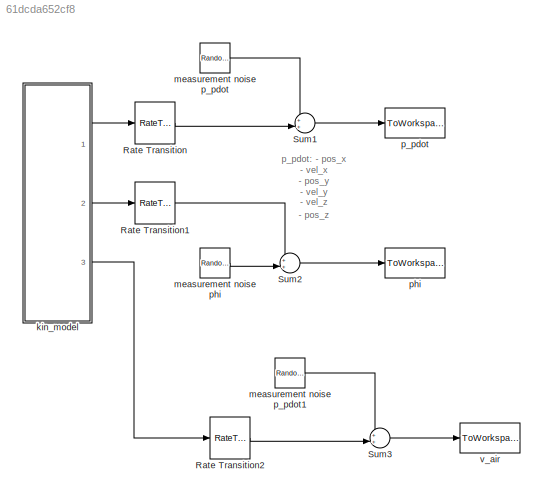
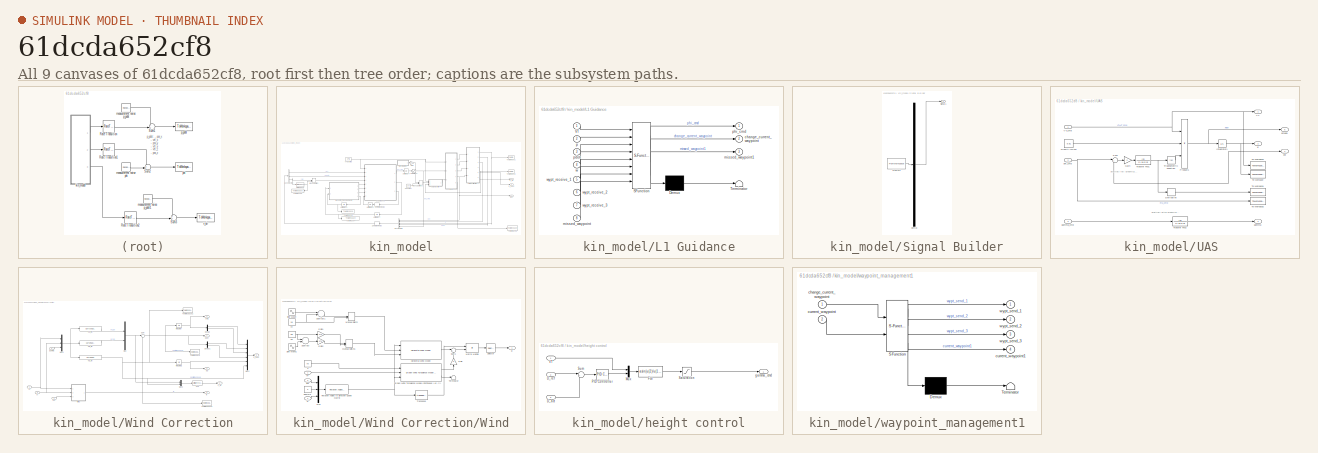
[diagram: thumbnail index - all 9 canvases of the model, root first then tree order]
MODEL slx_61dcda652cf8
KIND model
CONFIG AbsTol = auto
CONFIG FixedStep = 0.001
CONFIG MaxStep = auto
CONFIG MinStep = auto
CONFIG RelTol = 1e-3
CONFIG SampleTimeConstraint = Unconstrained
CONFIG Solver = ode45
CONFIG SolverMode = Auto
CONFIG SolverName = ode45
CONFIG StartTime = 0.0
CONFIG StopTime = 10.0
BLOCK [RateTransition] Rate Transition
  Integrity = off
  OutPortSampleTime = Ts_p_pdot
BLOCK [RateTransition] Rate Transition1
  Integrity = off
  OutPortSampleTime = Ts_phi
BLOCK [RateTransition] Rate Transition2
  Integrity = off
  OutPortSampleTime = Ts_v_air
BLOCK [Sum] Sum1
  IconShape = round
  InputSameDT = off
  Inputs = ++|
  OutDataTypeStr = Inherit: Inherit via internal rule
  Ports = [2, 1]
  SampleTime = Ts_p_pdot
  SaturateOnIntegerOverflow = off
BLOCK [Sum] Sum2
  IconShape = round
  InputSameDT = off
  Inputs = ++|
  OutDataTypeStr = Inherit: Inherit via internal rule
  Ports = [2, 1]
  SampleTime = Ts_phi
  SaturateOnIntegerOverflow = off
BLOCK [Sum] Sum3
  IconShape = round
  InputSameDT = off
  Inputs = ++|
  OutDataTypeStr = Inherit: Inherit via internal rule
  Ports = [2, 1]
  SampleTime = Ts_v_air
  SaturateOnIntegerOverflow = off
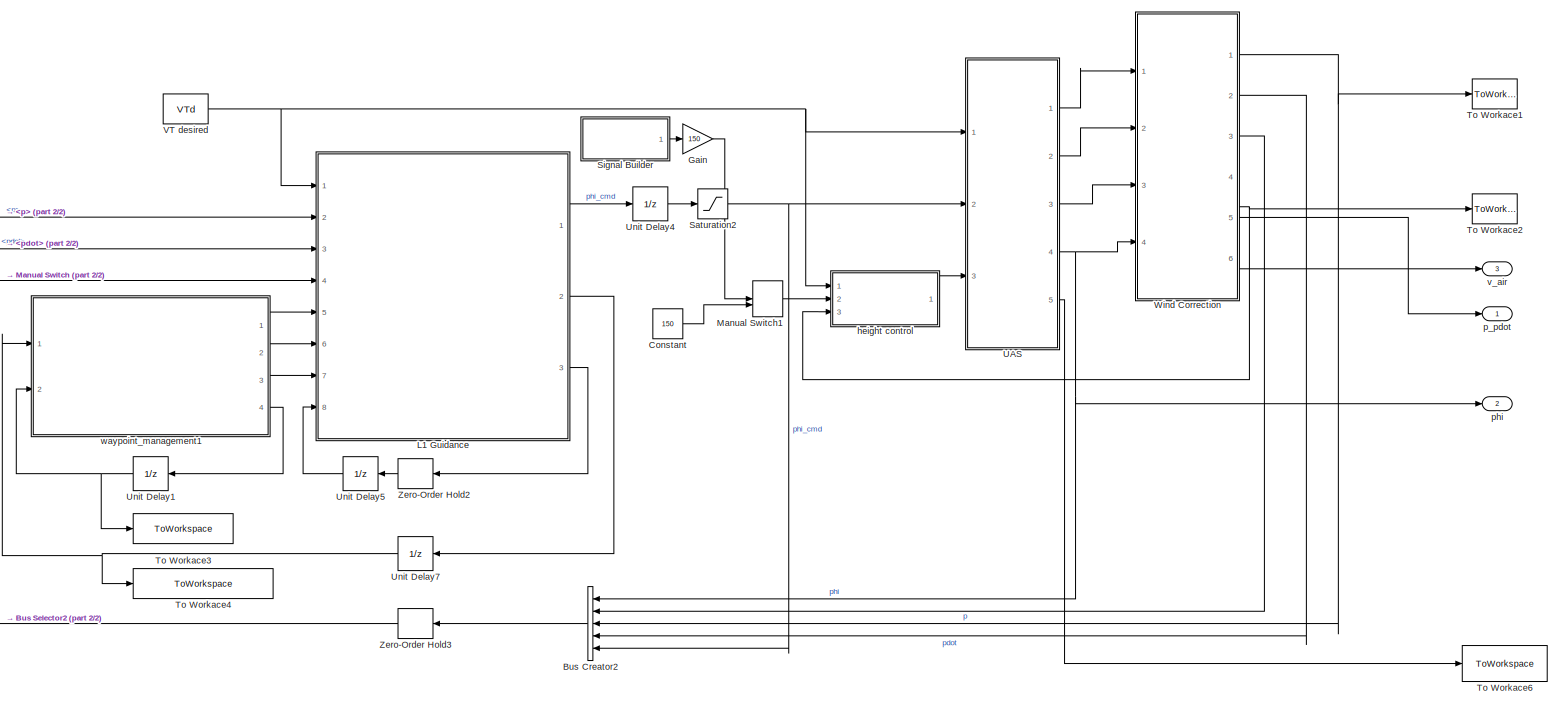
[diagram: kin_model - part 1/2, most of the canvas]
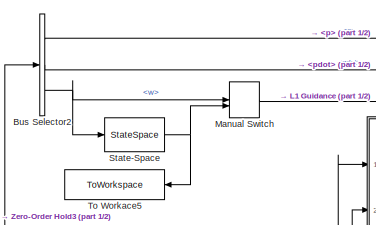
[diagram: kin_model - part 2/2, middle left region]
BLOCK [SubSystem] kin_model
  Ports = [0, 3]
  RequestExecContextInheritance = off
BLOCK [BusCreator] kin_model/Bus Creator2
  DisplayOption = bar
  Inputs = 5
  Ports = [5, 1]
BLOCK [BusSelector] kin_model/Bus Selector2
  OutputSignals = p,pdot,w
  Ports = [1, 3]
BLOCK [Constant] kin_model/Constant
  SampleTime = Ts
  Value = 150
BLOCK [Gain] kin_model/Gain
  Gain = 150
  OutDataTypeStr = Inherit: Inherit via internal rule
  ParamDataTypeStr = Inherit: Inherit via internal rule
  SaturateOnIntegerOverflow = off
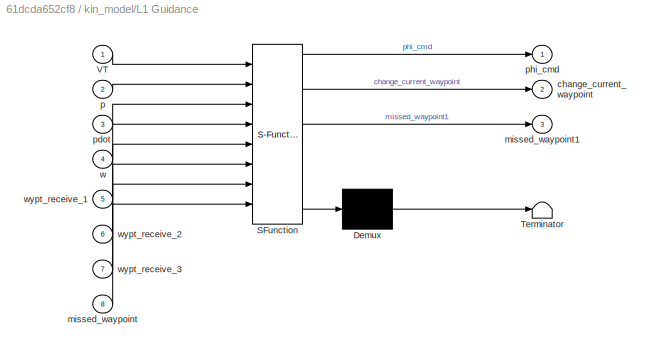
BLOCK [SubSystem] kin_model/L1 Guidance
  ErrorFcn = Stateflow.Translate.translate
  PermitHierarchicalResolution = ExplicitOnly
  Ports = [8, 3]
  RequestExecContextInheritance = off
  SFBlockType = MATLAB Function
  SystemSampleTime = Tctrl
  TreatAsAtomicUnit = on
BLOCK [Demux] kin_model/L1 Guidance/ Demux 
  Outputs = 1
  Ports = [1, 1]
BLOCK [S-Function] kin_model/L1 Guidance/ SFunction 
  EnableBusSupport = on
  FunctionName = sf_sfun
  PortCounts = [8 4]
  Ports = [8, 4]
  Tag = Stateflow S-Function aircraft_model 4
BLOCK [Terminator] kin_model/L1 Guidance/ Terminator 
BLOCK [Inport] kin_model/L1 Guidance/VT
  IconDisplay = Port number
BLOCK [Outport] kin_model/L1 Guidance/change_current_waypoint
  IconDisplay = Port number
  Port = 2
BLOCK [Inport] kin_model/L1 Guidance/missed_waypoint
  IconDisplay = Port number
  Port = 8
BLOCK [Outport] kin_model/L1 Guidance/missed_waypoint1
  IconDisplay = Port number
  Port = 3
BLOCK [Inport] kin_model/L1 Guidance/p
  IconDisplay = Port number
  Port = 2
BLOCK [Inport] kin_model/L1 Guidance/pdot
  IconDisplay = Port number
  Port = 3
BLOCK [Outport] kin_model/L1 Guidance/phi_cmd
  IconDisplay = Port number
BLOCK [Inport] kin_model/L1 Guidance/w
  IconDisplay = Port number
  Port = 4
BLOCK [Inport] kin_model/L1 Guidance/wypt_receive_1
  IconDisplay = Port number
  Port = 5
BLOCK [Inport] kin_model/L1 Guidance/wypt_receive_2
  IconDisplay = Port number
  Port = 6
BLOCK [Inport] kin_model/L1 Guidance/wypt_receive_3
  IconDisplay = Port number
  Port = 7
BLOCK [ManualSwitch] kin_model/Manual Switch
BLOCK [ManualSwitch] kin_model/Manual Switch1
BLOCK [Saturate] kin_model/Saturation2
  InputPortMap = u0
  LowerLimit = -phi_max
  Ports = [1, 1]
  UpperLimit = phi_max
BLOCK [SubSystem] kin_model/Signal Builder
  ClipboardFcn = sigbuilder_block('clipboard');
  CloseFcn = sigbuilder_block('close');
  ContinueFcn = sigbuilder_block('continue');
  CopyFcn = sigbuilder_block('copy');
  DeleteFcn = sigbuilder_block('delete');
  LoadFcn = sigbuilder_block('load',[0 51 1440 753 ]);
  MaskHideContents = on
  ModelCloseFcn = sigbuilder_block('modelClose');
  NameChangeFcn = sigbuilder_block('namechange');
  OpenFcn = sigbuilder_block('open',[437.6 199.2 550.4 400 ]);
  PauseFcn = sigbuilder_block('pause');
  Ports = [0, 1]
  PreSaveFcn = sigbuilder_block('preSave');
  RequestExecContextInheritance = off
  StartFcn = sigbuilder_block('start');
  StopFcn = sigbuilder_block('stop');
  Tag = STV Subsys
BLOCK [Demux] kin_model/Signal Builder/Demux
  Outputs = 1
  Ports = [1, 1]
  Tag = STV Demux
BLOCK [FromWorkspace] kin_model/Signal Builder/FromWs
  SampleTime = 0
  Tag = STV FromWs
  VariableName = tuvar
  ZeroCross = on
BLOCK [Outport] kin_model/Signal Builder/Signal 1
  IconDisplay = Port number
  Tag = STV Outport
BLOCK [StateSpace] kin_model/State-Space
  A = -1*eye(2)
  B = 1*eye(2)
  C = eye(2)
  D = zeros(2)
  Ports = [1, 1]
  X0 = double([Vw*cos(xiw);Vw*sin(xiw)])
BLOCK [ToWorkspace] kin_model/To Workace1
  MaxDataPoints = inf
  Ports = [1]
  SampleTime = Ts
  SaveFormat = Structure With Time
  VariableName = pNE
BLOCK [ToWorkspace] kin_model/To Workace2
  MaxDataPoints = inf
  Ports = [1]
  SampleTime = Ts
  SaveFormat = Structure With Time
  VariableName = pD
BLOCK [ToWorkspace] kin_model/To Workace3
  MaxDataPoints = inf
  Ports = [1]
  SampleTime = Ts
  SaveFormat = Structure With Time
  VariableName = current_waypoint
BLOCK [ToWorkspace] kin_model/To Workace4
  MaxDataPoints = inf
  Ports = [1]
  SampleTime = Ts
  SaveFormat = Structure With Time
  VariableName = change_current_waypoint
BLOCK [ToWorkspace] kin_model/To Workace5
  MaxDataPoints = inf
  Ports = [1]
  SampleTime = Ts
  SaveFormat = Structure With Time
  VariableName = w_fil
BLOCK [ToWorkspace] kin_model/To Workace6
  MaxDataPoints = inf
  Ports = [1]
  SampleTime = Ts
  SaveFormat = Structure With Time
  VariableName = omega_true
BLOCK [SubSystem] kin_model/UAS 
  Ports = [3, 5]
  RequestExecContextInheritance = off
BLOCK [Derivative] kin_model/UAS /Derivative
BLOCK [Gain] kin_model/UAS /Gain
  Gain = 2
  OutDataTypeStr = Inherit: Inherit via internal rule
  ParamDataTypeStr = Inherit: Inherit via internal rule
  SaturateOnIntegerOverflow = off
BLOCK [Constant] kin_model/UAS /Gravity [m//s2]
  Value = 9.81
BLOCK [Integrator] kin_model/UAS /Integrator1
  InitialCondition = xi0
  Ports = [1, 1]
BLOCK [Product] kin_model/UAS /Product1
  InputSameDT = off
  Inputs = /**
  OutDataTypeStr = Inherit: Inherit via internal rule
  Ports = [3, 1]
  RndMeth = Floor
  SaturateOnIntegerOverflow = off
BLOCK [Sum] kin_model/UAS /Sum
  IconShape = round
  InputSameDT = off
  Inputs = |+-
  OutDataTypeStr = Inherit: Inherit via internal rule
  Ports = [2, 1]
  SaturateOnIntegerOverflow = off
BLOCK [ToWorkspace] kin_model/UAS /To Workace
  MaxDataPoints = inf
  Ports = [1]
  SampleTime = Ts
  SaveFormat = Structure With Time
  VariableName = xi
BLOCK [ToWorkspace] kin_model/UAS /To Workace1
  MaxDataPoints = inf
  Ports = [1]
  SampleTime = Ts
  SaveFormat = Structure With Time
  VariableName = phi_dot
BLOCK [ToWorkspace] kin_model/UAS /To Workace2
  MaxDataPoints = inf
  Ports = [1]
  SampleTime = Ts
  SaveFormat = Structure With Time
  VariableName = phi_cmd
BLOCK [ToWorkspace] kin_model/UAS /To Workace4
  MaxDataPoints = inf
  Ports = [1]
  SampleTime = Ts
  SaveFormat = Structure With Time
  VariableName = VT
BLOCK [TransferFcn] kin_model/UAS /Transfer Fcn1
  Denominator = [1 10.5 0]
  Numerator = [2]
BLOCK [TransferFcn] kin_model/UAS /Transfer Fcn2
  Denominator = [1 10.5 0]
  Numerator = [2]
BLOCK [Trigonometry] kin_model/UAS /Trigonometric Function
  Operator = tan
  Ports = [1, 1]
BLOCK [Outport] kin_model/UAS /VT
  IconDisplay = Port number
BLOCK [Inport] kin_model/UAS /VT_cmd
  IconDisplay = Port number
BLOCK [Outport] kin_model/UAS /gamma
  IconDisplay = Port number
  Port = 3
BLOCK [Inport] kin_model/UAS /gamma_cmd
  IconDisplay = Port number
  Port = 3
BLOCK [Outport] kin_model/UAS /omega
  IconDisplay = Port number
  Port = 5
BLOCK [Outport] kin_model/UAS /phi
  IconDisplay = Port number
  Port = 4
BLOCK [Inport] kin_model/UAS /phi_cmd
  IconDisplay = Port number
  Port = 2
BLOCK [Outport] kin_model/UAS /xi
  IconDisplay = Port number
  Port = 2
BLOCK [UnitDelay] kin_model/Unit Delay1
  InitialCondition = 1
  InputProcessing = Elements as channels (sample based)
  SampleTime = 0.001
BLOCK [UnitDelay] kin_model/Unit Delay4
  InputProcessing = Elements as channels (sample based)
  SampleTime = 0.001
BLOCK [UnitDelay] kin_model/Unit Delay5
  InputProcessing = Elements as channels (sample based)
  SampleTime = 0.001
BLOCK [UnitDelay] kin_model/Unit Delay7
  InputProcessing = Elements as channels (sample based)
  SampleTime = 0.001
BLOCK [Constant] kin_model/VT desired
  Value = VTd
BLOCK [SubSystem] kin_model/Wind Correction
  Ports = [4, 6]
  RequestExecContextInheritance = off
BLOCK [Demux] kin_model/Wind Correction/Demux
  DisplayOption = bar
  Outputs = 2
  Ports = [1, 2]
BLOCK [Demux] kin_model/Wind Correction/Demux1
  DisplayOption = bar
  Outputs = 2
  Ports = [1, 2]
BLOCK [Fcn] kin_model/Wind Correction/Fcn
  Expr = sqrt(u(1)^2+u(2)^2+u(3)^2)
BLOCK [Integrator] kin_model/Wind Correction/Integrator
  InitialCondition = p0
  Ports = [1, 1]
BLOCK [Integrator] kin_model/Wind Correction/Integrator1
  InitialCondition = h0
  Ports = [1, 1]
BLOCK [Mux] kin_model/Wind Correction/Mux
  DisplayOption = bar
  Inputs = 2
  Ports = [2, 1]
BLOCK [Mux] kin_model/Wind Correction/Mux1
  DisplayOption = bar
  Inputs = 3
  Ports = [3, 1]
BLOCK [Mux] kin_model/Wind Correction/Mux2
  DisplayOption = bar
  Inputs = 6
  Ports = [6, 1]
BLOCK [Mux] kin_model/Wind Correction/Mux3
  DisplayOption = bar
  Inputs = 2
  Ports = [2, 1]
BLOCK [Sum] kin_model/Wind Correction/Sum
  IconShape = round
  InputSameDT = off
  Inputs = |++
  OutDataTypeStr = Inherit: Inherit via internal rule
  Ports = [2, 1]
  SaturateOnIntegerOverflow = off
BLOCK [ToWorkspace] kin_model/Wind Correction/To Workspace
  FixptAsFi = on
  MaxDataPoints = inf
  Ports = [1]
  SampleTime = Ts
  Save2DSignal = 3-D array (concatenate along third dimension)
  SaveFormat = Structure With Time
  VariableName = pdot
BLOCK [ToWorkspace] kin_model/Wind Correction/To Workspace1
  FixptAsFi = on
  MaxDataPoints = inf
  Ports = [1]
  SampleTime = Ts
  Save2DSignal = 3-D array (concatenate along third dimension)
  SaveFormat = Structure With Time
  VariableName = w
BLOCK [ToWorkspace] kin_model/Wind Correction/To Workspace2
  FixptAsFi = on
  MaxDataPoints = inf
  Ports = [1]
  SampleTime = Ts
  Save2DSignal = 3-D array (concatenate along third dimension)
  SaveFormat = Structure With Time
  VariableName = pdotD
BLOCK [Inport] kin_model/Wind Correction/VT
  IconDisplay = Port number
BLOCK [SubSystem] kin_model/Wind Correction/Wind
  Ports = [3, 1]
  RequestExecContextInheritance = off
BLOCK [Reference] kin_model/Wind Correction/Wind/Dryden Wind Turbulence Model (Continuous (+q -r))  REF=aerolibwind2/Dryden Wind Turbulence Model 
(Continuous (+q -r))
  L_high = 533.4
  Ports = [3, 2]
  Seed = [23341 23342 23343 23344]
  SourceBlock = aerolibwind2/Dryden Wind Turbulence Model \n(Continuous (+q -r))
  SourceType = Wind Turbulence Model
  T_on = on
  TurbProb = 10^-2 - Light
  W20 = Vw
  Wdeg = xiw
  Wingspan = b_uas
  model = Continuous Dryden (+q -r)
  spec = MIL-F-8785C
  ts = 0.01
  units = Metric (MKS)
BLOCK [Gain] kin_model/Wind Correction/Wind/Gain
  Gain = 0
  OutDataTypeStr = Inherit: Inherit via internal rule
  ParamDataTypeStr = Inherit: Inherit via internal rule
  SaturateOnIntegerOverflow = off
BLOCK [Gain] kin_model/Wind Correction/Wind/Gain1
  Gain = 57.3
  OutDataTypeStr = Inherit: Inherit via internal rule
  ParamDataTypeStr = Inherit: Inherit via internal rule
  SaturateOnIntegerOverflow = off
BLOCK [Gain] kin_model/Wind Correction/Wind/Gain2
  Gain = 57.3
  OutDataTypeStr = Inherit: Inherit via internal rule
  ParamDataTypeStr = Inherit: Inherit via internal rule
  SaturateOnIntegerOverflow = off
BLOCK [Reference] kin_model/Wind Correction/Wind/Horizontal Wind Model  REF=aerolibwind2/Horizontal Wind Model
  Ports = [3, 1]
  SourceBlock = aerolibwind2/Horizontal Wind Model
  SourceType = Horizontal Wind Model
  Vw_source = External
  Vwind = Vw
  W_source = External
  Wdeg = xiw
  units = Metric (MKS)
BLOCK [ManualSwitch] kin_model/Wind Correction/Wind/Manual Switch
  CurrentSetting = 0
BLOCK [ManualSwitch] kin_model/Wind Correction/Wind/Manual Switch1
  CurrentSetting = 0
BLOCK [Product] kin_model/Wind Correction/Wind/Matrix Multiply
  InputSameDT = off
  Multiplication = Matrix(*)
  OutDataTypeStr = Inherit: Inherit via internal rule
  Ports = [2, 1]
  RndMeth = Floor
  SaturateOnIntegerOverflow = off
BLOCK [Mux] kin_model/Wind Correction/Wind/Mux
  DisplayOption = bar
  Inputs = 3
  Ports = [3, 1]
BLOCK [Reference] kin_model/Wind Correction/Wind/Rotation Angles to Direction Cosine Matrix  REF=aerolibtransform2/Rotation Angles to
Direction Cosine Matrix
  AttributesFormatString = Rotation Order: %<rotationOrder>
  Ports = [1, 1]
  SourceBlock = aerolibtransform2/Rotation Angles to\nDirection Cosine Matrix
  SourceType = Ang2DCM
  rotationOrder = ZYX
BLOCK [Selector] kin_model/Wind Correction/Wind/Selector
  Indices = [1 2]
  InputPortWidth = 3
  Ports = [1, 1]
BLOCK [Sin] kin_model/Wind Correction/Wind/Sine Wave
  Amplitude = 3
  Bias = -1
  Frequency = 0.05
  Ports = [0, 1]
  SampleTime = 0
BLOCK [Sin] kin_model/Wind Correction/Wind/Sine Wave1
  Amplitude = 30*pi/180
  Frequency = 0.1
  Phase = 35*pi/180
  Ports = [0, 1]
  SampleTime = 0
BLOCK [Sum] kin_model/Wind Correction/Wind/Subtract
  InputSameDT = off
  OutDataTypeStr = Inherit: Inherit via internal rule
  Ports = [2, 1]
  SaturateOnIntegerOverflow = off
BLOCK [Sum] kin_model/Wind Correction/Wind/Subtract1
  InputSameDT = off
  OutDataTypeStr = Inherit: Inherit via internal rule
  Ports = [2, 1]
  SaturateOnIntegerOverflow = off
BLOCK [Sum] kin_model/Wind Correction/Wind/Sum1
  IconShape = round
  InputSameDT = off
  Inputs = |++
  OutDataTypeStr = Inherit: Inherit via internal rule
  Ports = [2, 1]
  SaturateOnIntegerOverflow = off
BLOCK [Terminator] kin_model/Wind Correction/Wind/Terminator
BLOCK [Math] kin_model/Wind Correction/Wind/Transpose
  Operator = transpose
  Ports = [1, 1]
BLOCK [Inport] kin_model/Wind Correction/Wind/VT
  IconDisplay = Port number
BLOCK [Constant] kin_model/Wind Correction/Wind/gamma
  Value = 0
BLOCK [Constant] kin_model/Wind Correction/Wind/h
  Value = h0
BLOCK [Constant] kin_model/Wind Correction/Wind/h4
  Value = Vw
BLOCK [Constant] kin_model/Wind Correction/Wind/h5
  Value = xiw
BLOCK [Inport] kin_model/Wind Correction/Wind/phi
  IconDisplay = Port number
  Port = 3
BLOCK [Outport] kin_model/Wind Correction/Wind/w
  IconDisplay = Port number
BLOCK [Inport] kin_model/Wind Correction/Wind/xi
  IconDisplay = Port number
  Port = 2
BLOCK [Inport] kin_model/Wind Correction/gamma
  IconDisplay = Port number
  Port = 3
BLOCK [Outport] kin_model/Wind Correction/pD
  IconDisplay = Port number
  Port = 4
BLOCK [Outport] kin_model/Wind Correction/pNE
  IconDisplay = Port number
  PortDimensions = 2
BLOCK [Outport] kin_model/Wind Correction/p_pdot
  IconDisplay = Port number
  Port = 5
BLOCK [Outport] kin_model/Wind Correction/pdot
  IconDisplay = Port number
  Port = 2
  PortDimensions = 2
BLOCK [Inport] kin_model/Wind Correction/phi
  IconDisplay = Port number
  Port = 4
BLOCK [Fcn] kin_model/Wind Correction/vD_rel
  Expr = u(1)*sin(u(3))
  SampleTime = Ts
BLOCK [Fcn] kin_model/Wind Correction/vE_rel
  Expr = u(1)*sin(u(2))*cos(u(3))
  SampleTime = Ts
BLOCK [Fcn] kin_model/Wind Correction/vN_rel
  Expr = u(1)*cos(u(2))*cos(u(3))
  SampleTime = Ts
BLOCK [Outport] kin_model/Wind Correction/v_air
  IconDisplay = Port number
  Port = 6
BLOCK [Outport] kin_model/Wind Correction/w
  IconDisplay = Port number
  Port = 3
  PortDimensions = 2
BLOCK [Inport] kin_model/Wind Correction/xi
  IconDisplay = Port number
  Port = 2
BLOCK [ZeroOrderHold] kin_model/Zero-Order Hold2
  SampleTime = 0.001
BLOCK [ZeroOrderHold] kin_model/Zero-Order Hold3
  SampleTime = Tctrl
BLOCK [SubSystem] kin_model/height control
  Ports = [3, 1]
  RequestExecContextInheritance = off
BLOCK [Inport] kin_model/height control/D_act
  IconDisplay = Port number
  Port = 3
BLOCK [Inport] kin_model/height control/D_ref
  IconDisplay = Port number
  Port = 2
BLOCK [Fcn] kin_model/height control/Fcn
  Expr = asin(u(2)/u(1))
  SampleTime = Ts
BLOCK [Mux] kin_model/height control/Mux
  DisplayOption = bar
  Inputs = 2
  Ports = [2, 1]
BLOCK [Reference] kin_model/height control/PID Controller  REF=simulink/Continuous/PID Controller
  AntiWindupMode = none
  Controller = PD
  D = 10
  DOutDataTypeStr = Inherit: Inherit via internal rule
  DOutMax = []
  DOutMin = []
  DParamDataTypeStr = Inherit: Inherit via internal rule
  DParamMax = []
  DParamMin = []
  DifferentiatorICPrevScaledInput = 0
  DifferentiatorOutDataTypeStr = Inherit: Inherit via internal rule
  DifferentiatorOutMax = []
  DifferentiatorOutMin = []
  ExternalReset = none
  FilterContinuousStateAttributes = ''
  FilterMethod = Forward Euler
  FilterOutDataTypeStr = Inherit: Inherit via internal rule
  FilterOutMax = []
  FilterOutMin = []
  FilterRTWStateStorageClass = Auto
  FilterStateMustResolveToSignalObject = off
  Form = Parallel
  I = 1
  IOutDataTypeStr = Inherit: Inherit via internal rule
  IOutMax = []
  IOutMin = []
  IParamDataTypeStr = Inherit: Inherit via internal rule
  IParamMax = []
  IParamMin = []
  IgnoreLimit = off
  InitialConditionForFilter = 0
  InitialConditionForIntegrator = 0
  InitialConditionSource = internal
  IntegratorContinuousStateAttributes = ''
  IntegratorMethod = Forward Euler
  IntegratorOutDataTypeStr = Inherit: Inherit via internal rule
  IntegratorOutMax = []
  IntegratorOutMin = []
  IntegratorRTWStateStorageClass = Auto
  IntegratorStateMustResolveToSignalObject = off
  Kb = 1
  KbOutDataTypeStr = Inherit: Inherit via internal rule
  KbOutMax = []
  KbOutMin = []
  KbParamDataTypeStr = Inherit: Inherit via internal rule
  KbParamMax = []
  KbParamMin = []
  Kt = 1
  KtOutDataTypeStr = Inherit: Inherit via internal rule
  KtOutMax = []
  KtOutMin = []
  KtParamDataTypeStr = Inherit: Inherit via internal rule
  KtParamMax = []
  KtParamMin = []
  LimitOutput = off
  LinearizeAsGain = on
  LockScale = off
  LowerSaturationLimit = -inf
  N = 100
  NOutDataTypeStr = Inherit: Inherit via internal rule
  NOutMax = []
  NOutMin = []
  NParamDataTypeStr = Inherit: Inherit via internal rule
  NParamMax = []
  NParamMin = []
  P = 5
  POutDataTypeStr = Inherit: Inherit via internal rule
  POutMax = []
  POutMin = []
  PParamDataTypeStr = Inherit: Inherit via internal rule
  PParamMax = []
  PParamMin = []
  Ports = [1, 1]
  RndMeth = Floor
  SampleTime = -1
  SaturateOnIntegerOverflow = off
  SaturationOutDataTypeStr = Inherit: Same as input
  SaturationOutMax = []
  SaturationOutMin = []
  SourceBlock = simulink/Continuous/PID Controller
  SourceType = PID 1dof
  SumAccumDataTypeStr = Inherit: Inherit via internal rule
  SumDAccumDataTypeStr = Inherit: Inherit via internal rule
  SumDOutDataTypeStr = Inherit: Inherit via internal rule
  SumDOutMax = []
  SumDOutMin = []
  SumI1AccumDataTypeStr = Inherit: Inherit via internal rule
  SumI1OutDataTypeStr = Inherit: Inherit via internal rule
  SumI1OutMax = []
  SumI1OutMin = []
  SumI2AccumDataTypeStr = Inherit: Inherit via internal rule
  SumI2OutDataTypeStr = Inherit: Inherit via internal rule
  SumI2OutMax = []
  SumI2OutMin = []
  SumI3AccumDataTypeStr = Inherit: Inherit via internal rule
  SumI3OutDataTypeStr = Inherit: Inherit via internal rule
  SumI3OutMax = []
  SumI3OutMin = []
  SumOutDataTypeStr = Inherit: Inherit via internal rule
  SumOutMax = []
  SumOutMin = []
  TimeDomain = Continuous-time
  TrackingMode = off
  UpperSaturationLimit = inf
  UseFilter = on
  ZeroCross = on
BLOCK [Saturate] kin_model/height control/Saturation
  InputPortMap = u0
  LowerLimit = -phi_max
  Ports = [1, 1]
  UpperLimit = phi_max
BLOCK [Sum] kin_model/height control/Sum
  IconShape = round
  InputSameDT = off
  Inputs = |+-
  OutDataTypeStr = Inherit: Inherit via internal rule
  Ports = [2, 1]
  SaturateOnIntegerOverflow = off
BLOCK [Inport] kin_model/height control/VT
  IconDisplay = Port number
BLOCK [Outport] kin_model/height control/gamma_cmd
  IconDisplay = Port number
BLOCK [Outport] kin_model/p_pdot
  IconDisplay = Port number
BLOCK [Outport] kin_model/phi
  IconDisplay = Port number
  Port = 2
BLOCK [Outport] kin_model/v_air
  IconDisplay = Port number
  Port = 3
BLOCK [SubSystem] kin_model/waypoint_management1
  ErrorFcn = Stateflow.Translate.translate
  PermitHierarchicalResolution = ExplicitOnly
  Ports = [2, 4]
  RequestExecContextInheritance = off
  SFBlockType = MATLAB Function
  SystemSampleTime = Tctrl
  TreatAsAtomicUnit = on
BLOCK [Demux] kin_model/waypoint_management1/ Demux 
  Outputs = 1
  Ports = [1, 1]
BLOCK [S-Function] kin_model/waypoint_management1/ SFunction 
  EnableBusSupport = on
  FunctionName = sf_sfun
  Parameters = wypts0
  PortCounts = [2 5]
  Ports = [2, 5]
  Tag = Stateflow S-Function aircraft_model 6
BLOCK [Terminator] kin_model/waypoint_management1/ Terminator 
BLOCK [Inport] kin_model/waypoint_management1/change_current_waypoint
  IconDisplay = Port number
BLOCK [Inport] kin_model/waypoint_management1/current_waypoint
  IconDisplay = Port number
  Port = 2
BLOCK [Outport] kin_model/waypoint_management1/current_waypoint1
  IconDisplay = Port number
  Port = 4
BLOCK [Outport] kin_model/waypoint_management1/wypt_send_1
  IconDisplay = Port number
BLOCK [Outport] kin_model/waypoint_management1/wypt_send_2
  IconDisplay = Port number
  Port = 2
BLOCK [Outport] kin_model/waypoint_management1/wypt_send_3
  IconDisplay = Port number
  Port = 3
BLOCK [RandomNumber] measurement noise p_pdot
  SampleTime = Ts_p_pdot
  Seed = seed_p_pdot
  Variance = [m_p;m_v;m_p;m_v;m_p;m_v]
BLOCK [RandomNumber] measurement noise p_pdot1
  SampleTime = Ts_v_air
  Seed = seed_v_air
  Variance = [m_v_air]
BLOCK [RandomNumber] measurement noise phi
  SampleTime = Ts_phi
  Seed = seed_phi
  Variance = m_phi
BLOCK [ToWorkspace] p_pdot
  FixptAsFi = on
  MaxDataPoints = inf
  Ports = [1]
  SampleTime = -1
  Save2DSignal = 3-D array (concatenate along third dimension)
  SaveFormat = Structure With Time
  VariableName = p_pdot
BLOCK [ToWorkspace] phi
  FixptAsFi = on
  MaxDataPoints = inf
  Ports = [1]
  SampleTime = -1
  Save2DSignal = 3-D array (concatenate along third dimension)
  SaveFormat = Structure With Time
  VariableName = phi
BLOCK [ToWorkspace] v_air
  FixptAsFi = on
  MaxDataPoints = inf
  Ports = [1]
  SampleTime = -1
  Save2DSignal = 3-D array (concatenate along third dimension)
  SaveFormat = Structure With Time
  VariableName = v_air
ANNOTATION (root): p_pdot: - pos_x - vel_x - pos_y - vel_y - pos_z - vel_z
ANNOTATION kin_model/UAS : arbitrary pitch dynamics...
ANNOTATION kin_model/UAS : arbitrary roll dynamics...
LINE Rate Transition1:1 -> Sum2:1
LINE Rate Transition2:1 -> Sum3:2
LINE Rate Transition:1 -> Sum1:2
LINE Sum1:1 -> p_pdot:1
LINE Sum2:1 -> phi:1
LINE Sum3:1 -> v_air:1
LINE kin_model/Bus Creator2:1 -> kin_model/Zero-Order Hold3:1
LINE kin_model/Bus Selector2:1 -> kin_model/L1 Guidance:2
LINE kin_model/Bus Selector2:2 -> kin_model/L1 Guidance:3
NET kin_model/Bus Selector2:3 -> kin_model/Manual Switch:1, kin_model/State-Space:1
LINE kin_model/Constant:1 -> kin_model/Manual Switch1:2
LINE kin_model/Gain:1 -> kin_model/Manual Switch1:1
LINE kin_model/L1 Guidance:1 -> kin_model/Unit Delay4:1
LINE kin_model/L1 Guidance:2 -> kin_model/Unit Delay7:1
LINE kin_model/L1 Guidance:3 -> kin_model/Zero-Order Hold2:1
LINE kin_model/Manual Switch1:1 -> kin_model/height control:2
LINE kin_model/Manual Switch:1 -> kin_model/L1 Guidance:4
NET kin_model/Saturation2:1 -> kin_model/Bus Creator2:5, kin_model/UAS :2
LINE kin_model/Signal Builder:1 -> kin_model/Gain:1
NET kin_model/State-Space:1 -> kin_model/Manual Switch:2, kin_model/To Workace5:1
LINE kin_model/UAS /Derivative:1 -> kin_model/UAS /To Workace1:1
LINE kin_model/UAS /Gain:1 -> kin_model/UAS /Transfer Fcn1:1
LINE kin_model/UAS /Gravity [m//s2]:1 -> kin_model/UAS /Product1:2
NET kin_model/UAS /Integrator1:1 -> kin_model/UAS /To Workace:1, kin_model/UAS /xi:1
NET kin_model/UAS /Product1:1 -> kin_model/UAS /Integrator1:1, kin_model/UAS /omega:1
LINE kin_model/UAS /Sum:1 -> kin_model/UAS /Gain:1
NET kin_model/UAS /Transfer Fcn1:1 -> kin_model/UAS /Derivative:1, kin_model/UAS /Sum:2, kin_model/UAS /Trigonometric Function:1, kin_model/UAS /phi:1
LINE kin_model/UAS /Transfer Fcn2:1 -> kin_model/UAS /gamma:1
LINE kin_model/UAS /Trigonometric Function:1 -> kin_model/UAS /Product1:3
NET kin_model/UAS /VT_cmd:1 -> kin_model/UAS /Product1:1, kin_model/UAS /To Workace4:1, kin_model/UAS /VT:1
LINE kin_model/UAS /gamma_cmd:1 -> kin_model/UAS /Transfer Fcn2:1
NET kin_model/UAS /phi_cmd:1 -> kin_model/UAS /Sum:1, kin_model/UAS /To Workace2:1
LINE kin_model/UAS :1 -> kin_model/Wind Correction:1
LINE kin_model/UAS :2 -> kin_model/Wind Correction:2
LINE kin_model/UAS :3 -> kin_model/Wind Correction:3
NET kin_model/UAS :4 -> kin_model/Bus Creator2:1, kin_model/Wind Correction:4, kin_model/phi:1
LINE kin_model/UAS :5 -> kin_model/To Workace6:1
NET kin_model/Unit Delay1:1 -> kin_model/To Workace3:1, kin_model/waypoint_management1:2
LINE kin_model/Unit Delay4:1 -> kin_model/Saturation2:1
LINE kin_model/Unit Delay5:1 -> kin_model/L1 Guidance:8
NET kin_model/Unit Delay7:1 -> kin_model/To Workace4:1, kin_model/waypoint_management1:1
NET kin_model/VT desired:1 -> kin_model/L1 Guidance:1, kin_model/UAS :1, kin_model/height control:1
LINE kin_model/Wind Correction/Demux1:1 -> kin_model/Wind Correction/Mux2:2
LINE kin_model/Wind Correction/Demux1:2 -> kin_model/Wind Correction/Mux2:4
LINE kin_model/Wind Correction/Demux:1 -> kin_model/Wind Correction/Mux2:1
LINE kin_model/Wind Correction/Demux:2 -> kin_model/Wind Correction/Mux2:3
LINE kin_model/Wind Correction/Fcn:1 -> kin_model/Wind Correction/v_air:1
NET kin_model/Wind Correction/Integrator1:1 -> kin_model/Wind Correction/Mux2:5, kin_model/Wind Correction/pD:1
NET kin_model/Wind Correction/Integrator:1 -> kin_model/Wind Correction/Demux:1, kin_model/Wind Correction/pNE:1
NET kin_model/Wind Correction/Mux1:1 -> kin_model/Wind Correction/vD_rel:1, kin_model/Wind Correction/vE_rel:1, kin_model/Wind Correction/vN_rel:1
LINE kin_model/Wind Correction/Mux2:1 -> kin_model/Wind Correction/p_pdot:1
LINE kin_model/Wind Correction/Mux3:1 -> kin_model/Wind Correction/Fcn:1
NET kin_model/Wind Correction/Mux:1 -> kin_model/Wind Correction/Mux3:1, kin_model/Wind Correction/Sum:1
NET kin_model/Wind Correction/Sum:1 -> kin_model/Wind Correction/Demux1:1, kin_model/Wind Correction/Integrator:1, kin_model/Wind Correction/To Workspace:1, kin_model/Wind Correction/pdot:1
NET kin_model/Wind Correction/VT:1 -> kin_model/Wind Correction/Mux1:1, kin_model/Wind Correction/Wind:1
LINE kin_model/Wind Correction/Wind/Dryden Wind Turbulence Model (Continuous (+q -r)):1 -> kin_model/Wind Correction/Wind/Gain:1
LINE kin_model/Wind Correction/Wind/Dryden Wind Turbulence Model (Continuous (+q -r)):2 -> kin_model/Wind Correction/Wind/Terminator:1
LINE kin_model/Wind Correction/Wind/Gain1:1 -> kin_model/Wind Correction/Wind/Manual Switch1:2
LINE kin_model/Wind Correction/Wind/Gain2:1 -> kin_model/Wind Correction/Wind/Manual Switch1:1
LINE kin_model/Wind Correction/Wind/Gain:1 -> kin_model/Wind Correction/Wind/Sum1:2
LINE kin_model/Wind Correction/Wind/Horizontal Wind Model:1 -> kin_model/Wind Correction/Wind/Sum1:1
LINE kin_model/Wind Correction/Wind/Manual Switch1:1 -> kin_model/Wind Correction/Wind/Horizontal Wind Model:3
LINE kin_model/Wind Correction/Wind/Manual Switch:1 -> kin_model/Wind Correction/Wind/Horizontal Wind Model:2
LINE kin_model/Wind Correction/Wind/Matrix Multiply:1 -> kin_model/Wind Correction/Wind/Selector:1
LINE kin_model/Wind Correction/Wind/Mux:1 -> kin_model/Wind Correction/Wind/Rotation Angles to Direction Cosine Matrix:1
NET kin_model/Wind Correction/Wind/Rotation Angles to Direction Cosine Matrix:1 -> kin_model/Wind Correction/Wind/Dryden Wind Turbulence Model (Continuous (+q -r)):3, kin_model/Wind Correction/Wind/Horizontal Wind Model:1, kin_model/Wind Correction/Wind/Transpose:1
LINE kin_model/Wind Correction/Wind/Selector:1 -> kin_model/Wind Correction/Wind/w:1
LINE kin_model/Wind Correction/Wind/Sine Wave1:1 -> kin_model/Wind Correction/Wind/Subtract:2
LINE kin_model/Wind Correction/Wind/Sine Wave:1 -> kin_model/Wind Correction/Wind/Subtract1:1
LINE kin_model/Wind Correction/Wind/Subtract1:1 -> kin_model/Wind Correction/Wind/Manual Switch:1
LINE kin_model/Wind Correction/Wind/Subtract:1 -> kin_model/Wind Correction/Wind/Gain2:1
LINE kin_model/Wind Correction/Wind/Sum1:1 -> kin_model/Wind Correction/Wind/Matrix Multiply:2
LINE kin_model/Wind Correction/Wind/Transpose:1 -> kin_model/Wind Correction/Wind/Matrix Multiply:1
LINE kin_model/Wind Correction/Wind/VT:1 -> kin_model/Wind Correction/Wind/Dryden Wind Turbulence Model (Continuous (+q -r)):2
LINE kin_model/Wind Correction/Wind/gamma:1 -> kin_model/Wind Correction/Wind/Mux:2
NET kin_model/Wind Correction/Wind/h4:1 -> kin_model/Wind Correction/Wind/Manual Switch:2, kin_model/Wind Correction/Wind/Subtract1:2
NET kin_model/Wind Correction/Wind/h5:1 -> kin_model/Wind Correction/Wind/Gain1:1, kin_model/Wind Correction/Wind/Subtract:1
LINE kin_model/Wind Correction/Wind/h:1 -> kin_model/Wind Correction/Wind/Dryden Wind Turbulence Model (Continuous (+q -r)):1
LINE kin_model/Wind Correction/Wind/phi:1 -> kin_model/Wind Correction/Wind/Mux:1
LINE kin_model/Wind Correction/Wind/xi:1 -> kin_model/Wind Correction/Wind/Mux:3
NET kin_model/Wind Correction/Wind:1 -> kin_model/Wind Correction/Sum:2, kin_model/Wind Correction/To Workspace1:1, kin_model/Wind Correction/w:1
LINE kin_model/Wind Correction/gamma:1 -> kin_model/Wind Correction/Mux1:3
LINE kin_model/Wind Correction/phi:1 -> kin_model/Wind Correction/Wind:3
NET kin_model/Wind Correction/vD_rel:1 -> kin_model/Wind Correction/Integrator1:1, kin_model/Wind Correction/Mux2:6, kin_model/Wind Correction/Mux3:2, kin_model/Wind Correction/To Workspace2:1
LINE kin_model/Wind Correction/vE_rel:1 -> kin_model/Wind Correction/Mux:2
LINE kin_model/Wind Correction/vN_rel:1 -> kin_model/Wind Correction/Mux:1
NET kin_model/Wind Correction/xi:1 -> kin_model/Wind Correction/Mux1:2, kin_model/Wind Correction/Wind:2
NET kin_model/Wind Correction:1 -> kin_model/Bus Creator2:3, kin_model/To Workace1:1
LINE kin_model/Wind Correction:2 -> kin_model/Bus Creator2:4
LINE kin_model/Wind Correction:3 -> kin_model/Bus Creator2:2
NET kin_model/Wind Correction:4 -> kin_model/To Workace2:1, kin_model/height control:3
LINE kin_model/Wind Correction:5 -> kin_model/p_pdot:1
LINE kin_model/Wind Correction:6 -> kin_model/v_air:1
LINE kin_model/Zero-Order Hold2:1 -> kin_model/Unit Delay5:1
LINE kin_model/Zero-Order Hold3:1 -> kin_model/Bus Selector2:1
LINE kin_model/height control/D_act:1 -> kin_model/height control/Sum:2
LINE kin_model/height control/D_ref:1 -> kin_model/height control/Sum:1
LINE kin_model/height control/Fcn:1 -> kin_model/height control/Saturation:1
LINE kin_model/height control/Mux:1 -> kin_model/height control/Fcn:1
LINE kin_model/height control/PID Controller:1 -> kin_model/height control/Mux:2
LINE kin_model/height control/Saturation:1 -> kin_model/height control/gamma_cmd:1
LINE kin_model/height control/Sum:1 -> kin_model/height control/PID Controller:1
LINE kin_model/height control/VT:1 -> kin_model/height control/Mux:1
LINE kin_model/height control:1 -> kin_model/UAS :3
LINE kin_model/waypoint_management1:1 -> kin_model/L1 Guidance:5
LINE kin_model/waypoint_management1:2 -> kin_model/L1 Guidance:6
LINE kin_model/waypoint_management1:3 -> kin_model/L1 Guidance:7
LINE kin_model/waypoint_management1:4 -> kin_model/Unit Delay1:1
LINE kin_model:1 -> Rate Transition:1
LINE kin_model:2 -> Rate Transition1:1
LINE kin_model:3 -> Rate Transition2:1
LINE measurement noise p_pdot1:1 -> Sum3:1
LINE measurement noise p_pdot:1 -> Sum1:1
LINE measurement noise phi:1 -> Sum2:2
note: NET lines group one-source signal fan-out (src -> all destinations, sorted); 1:1 wires keep LINE
CHART kin_model/L1 Guidance states=1 transitions=1
  STATE_LABEL 'eML_blk_kernel()'
  STATE_LABEL 'SCRIPT:\nfunction [phi_cmd,change_current_waypoint,missed_waypoint1] = L1Guidance(VT,p,pdot,w,wypt_receive_1,wypt_receive_2,wypt_receive_3,missed_waypoint)\n%#codegen\n\nwypts = [wypt_receive_1,wypt_receive_2,wypt_receive_3];\n\nRdefault = 70;\nsdefault = 1;\nchange_current_waypoint = 0;\nphi_cmd = 0;\n\n% Wind speed estimate greater than airspeed\nif norm(w) > 0.99*VT\n    \n    phi_cmd = 0;%over_airspeed(pdot...<+3280ch>'
CHART kin_model/waypoint_management1 states=1 transitions=1
  STATE_LABEL 'eML_blk_kernel()'
  STATE_LABEL 'SCRIPT:\nfunction [wypt_send_1,wypt_send_2,wypt_send_3,current_waypoint1] = ...\n    waypoint_management(wypts0,change_current_waypoint,current_waypoint)\n%#codegen\n% ========================================================================\n\n% This block is intended to mimic Mavlink waypoint switching logic\n\n% ========================================================================\n\n% - - - - - - -\n% ...<+1808ch>'
